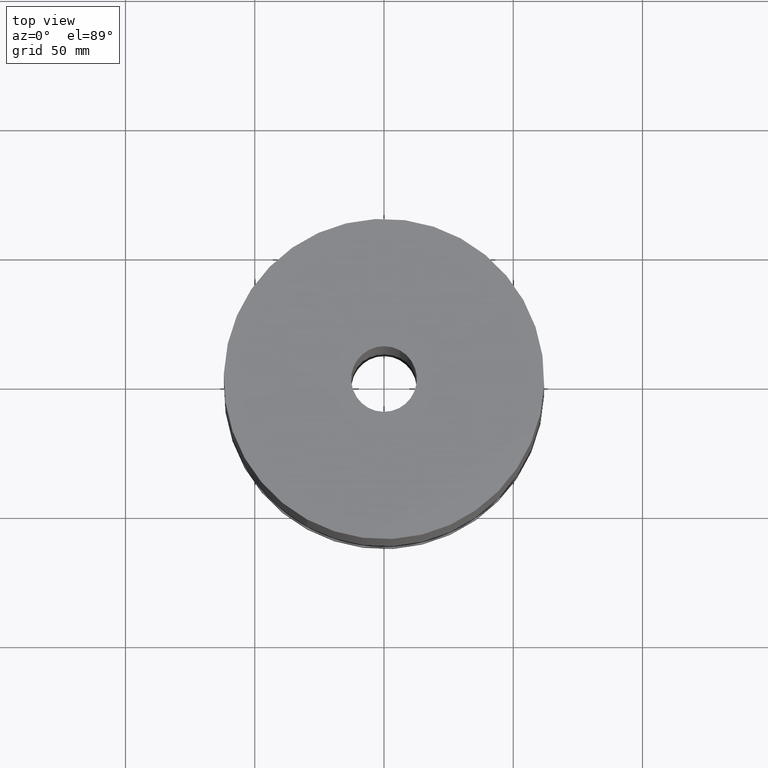
[diagram: clean part render]
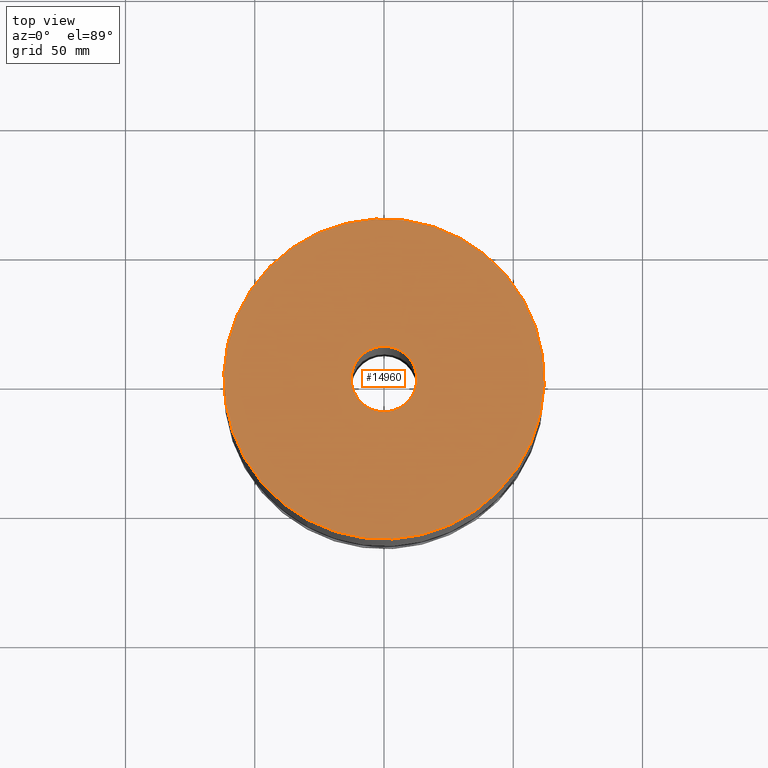
[diagram: same view with one face highlighted and labeled with its STEP entity id]
A machine part, top view. The second image highlights one B-rep face of the part: STEP entity #14960.
In plain terms, the highlighted planar face has unit normal (0, 0, -1).
Its self-contained STEP definition (entity closure, byte-faithful):
#4156=AXIS2_PLACEMENT_3D('Circle Axis2P3D',#4154,#4155,$) ;
#4175=AXIS2_PLACEMENT_3D('Circle Axis2P3D',#4173,#4174,$) ;
#14936=AXIS2_PLACEMENT_3D('Plane Axis2P3D',#14933,#14934,#14935) ;
#14944=AXIS2_PLACEMENT_3D('Circle Axis2P3D',#14942,#14943,$) ;
#14953=AXIS2_PLACEMENT_3D('Circle Axis2P3D',#14951,#14952,$) ;
#4151=CARTESIAN_POINT('Vertex',(1.1697983142,2.14130145102,8.75000000004)) ;
#4154=CARTESIAN_POINT('Axis2P3D Location',(0.,0.,8.75000000003)) ;
#4158=CARTESIAN_POINT('Vertex',(-1.1697983142,-2.14130145102,8.75000000004)) ;
#4173=CARTESIAN_POINT('Axis2P3D Location',(0.,0.,8.75000000003)) ;
#14933=CARTESIAN_POINT('Axis2P3D Location',(0.,2.44000000001,8.75000000003)) ;
#14942=CARTESIAN_POINT('Axis2P3D Location',(0.,0.,8.75000000003)) ;
#14946=CARTESIAN_POINT('Vertex',(-0.239712769303,-0.438791280947,8.75000000004)) ;
#14948=CARTESIAN_POINT('Vertex',(0.239712769303,0.438791280947,8.75000000004)) ;
#14951=CARTESIAN_POINT('Axis2P3D Location',(0.,0.,8.75000000003)) ;
#4155=DIRECTION('Axis2P3D Direction',(0.,0.,-0.0393700787402)) ;
#4174=DIRECTION('Axis2P3D Direction',(0.,0.,-0.0393700787402)) ;
#14934=DIRECTION('Axis2P3D Direction',(0.,0.,-0.0393700787402)) ;
#14935=DIRECTION('Axis2P3D XDirection',(0.0393700787402,0.,0.)) ;
#14943=DIRECTION('Axis2P3D Direction',(0.,0.,-0.0393700787402)) ;
#14952=DIRECTION('Axis2P3D Direction',(0.,0.,-0.0393700787402)) ;
#14939=ORIENTED_EDGE('',*,*,#4160,.F.) ;
#14940=ORIENTED_EDGE('',*,*,#4177,.F.) ;
#14957=ORIENTED_EDGE('',*,*,#14950,.T.) ;
#14958=ORIENTED_EDGE('',*,*,#14955,.T.) ;
#14959=FACE_BOUND('',#14956,.T.) ;
#14960=ADVANCED_FACE('PartBody',(#14941,#14959),#14937,.F.) ;
#4157=CIRCLE('generated circle',#4156,2.44000000001) ;
#4176=CIRCLE('generated circle',#4175,2.44000000001) ;
#14945=CIRCLE('generated circle',#14944,0.500000000002) ;
#14954=CIRCLE('generated circle',#14953,0.500000000002) ;
#4160=EDGE_CURVE('',#4152,#4159,#4157,.T.) ;
#4177=EDGE_CURVE('',#4159,#4152,#4176,.T.) ;
#14950=EDGE_CURVE('',#14947,#14949,#14945,.T.) ;
#14955=EDGE_CURVE('',#14949,#14947,#14954,.T.) ;
#14938=EDGE_LOOP('',(#14939,#14940)) ;
#14956=EDGE_LOOP('',(#14957,#14958)) ;
#14941=FACE_OUTER_BOUND('',#14938,.T.) ;
#14937=PLANE('',#14936) ;
#4152=VERTEX_POINT('',#4151) ;
#4159=VERTEX_POINT('',#4158) ;
#14947=VERTEX_POINT('',#14946) ;
#14949=VERTEX_POINT('',#14948) ;